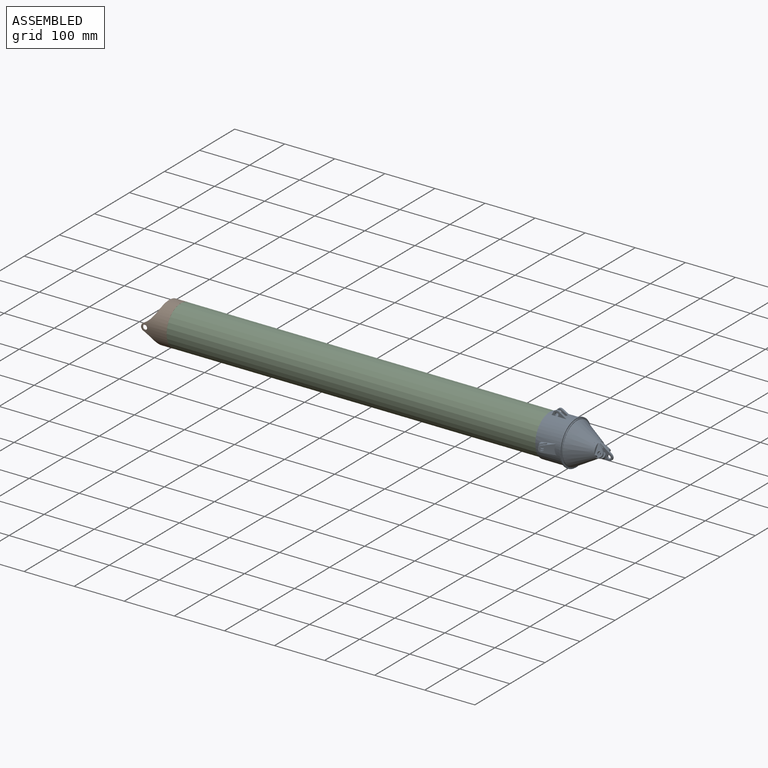
[diagram: assembled view]
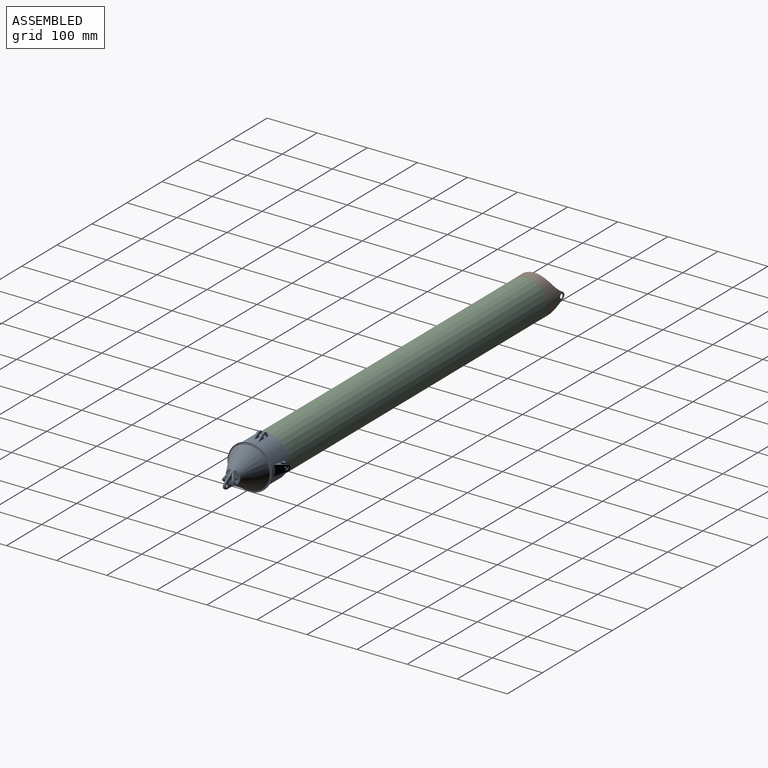
[diagram: assembled view, second angle]
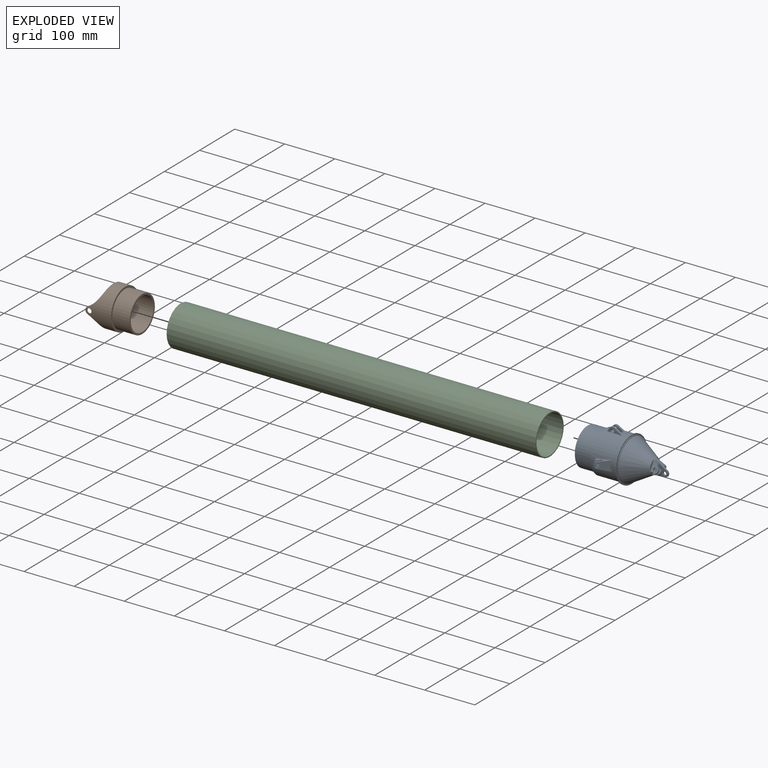
[diagram: exploded view]
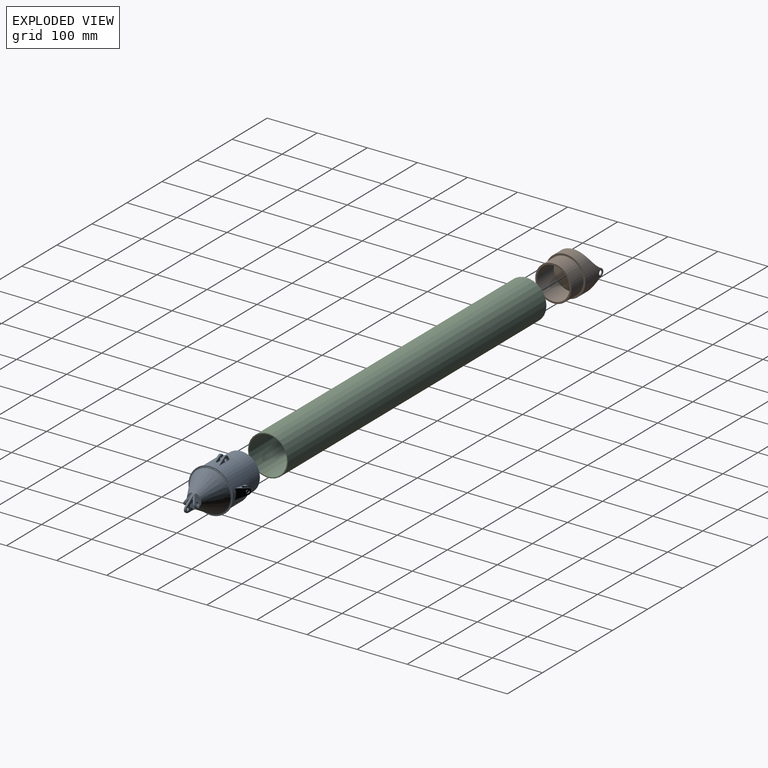
[diagram: exploded view, second angle]
ASSEMBLY  parts=3 mates=2
PART A: 187 faces, bbox 162.1x110.4x98 mm
  f0: plane 83.2x82.29mm, normal (-1,0,0), area 990.7mm2, adj f179,f180,f182,f183
  f1: cylinder r=41.15mm len=82.29mm, axis (-1,0,0), area 275.8mm2, adj f2,f81,f82,f83
  f2: plane 82.29x52.86mm, normal (1,0,0), area 121mm2, adj f1,f3
  f3: cone r=17.5mm half-angle=30deg, axis (-1,0,0), area 8572.9mm2, adj f2,f4,f82
  f4: plane 34.99x34.99mm, normal (1,0,0), area 5.9mm2, adj f3,f74
  f5: plane 6.98x6mm, normal (0,0.86,0.51), area 38.2mm2, adj f7
  f6: plane 6.98x6mm, normal (0,-0.86,0.51), area 38.2mm2, adj f8
  f7: cylinder r=3.49mm len=7.19mm, axis (0,0.86,0.51), area 51mm2, adj f5,f11
  f8: cylinder r=3.49mm len=7.19mm, axis (0,-0.86,0.51), area 51mm2, adj f6,f12
  f9: sphere r=1.16mm, area 0.7mm2, adj f18,f19,f33
  f10: sphere r=1.16mm, area 0.7mm2, adj f23,f25,f34
  f11: plane 12.79x10.55mm, normal (0,0.86,0.51), area 95.2mm2, adj f7,f15,f21,f23,f34,f36
  f12: plane 12.79x10.55mm, normal (0,-0.86,0.51), area 95.2mm2, adj f8,f13,f16,f18,f33,f37
  f13: bspline ~6.45x4.64mm, area 27.7mm2, adj f12,f14,f16,f37,f59
  f14: bspline ~3.84x3.17mm, area 11.7mm2, adj f13,f15,f20,f59
  f15: bspline ~6.45x4.69mm, area 27.7mm2, adj f11,f14,f21,f36,f59
  f16: cylinder r=6.98mm len=13.22mm, axis (0,-0.86,0.51), area 63.9mm2, adj f12,f13,f17,f18,f38
  f17: plane 0.44x0.31mm, normal (0.78,0.32,0.54), area 0mm2, adj f16,f18,f38
  f18: cylinder r=1.16mm len=11.43mm, axis (-1,0,0), area 7mm2, adj f9,f12,f16,f17,f38
  f19: cylinder r=1.16mm len=5.47mm, axis (0,0,1), area 10mm2, adj f9,f26,f32,f38
  f20: plane 12.79x3.49mm, normal (0,0,-1), area 44.6mm2, adj f14,f38,f39,f40
  f21: cylinder r=6.98mm len=13.22mm, axis (0,0.86,0.51), area 63.9mm2, adj f11,f15,f22,f23,f40
  f22: plane 0.44x0.31mm, normal (0.78,-0.32,0.54), area 0mm2, adj f21,f23,f40
  f23: cylinder r=1.16mm len=11.43mm, axis (1,0,0), area 7mm2, adj f10,f11,f21,f22,f40
  f24: cylinder r=3.49mm len=6.98mm, axis (0,-1,0), area 76.5mm2, adj f38,f40
  f25: cylinder r=1.16mm len=5.47mm, axis (0,0,-1), area 10mm2, adj f10,f35,f40,f41
  f26: sphere r=1.16mm, area 3.5mm2, adj f19,f31,f43
  f27: plane 3.28x3mm, normal (0,-0.51,-0.86), area 6.3mm2, adj f45,f46,f47,f52
  f28: cylinder r=3.49mm len=7.78mm, axis (0,0.86,-0.51), area 76.5mm2, adj f46,f47
  f29: plane 15.29x9.21mm, normal (1,0,0), area 38.3mm2, adj f48,f50
  f30: bspline ~2.4x1.54mm, area 1.7mm2, adj f47,f48,f51,f52
  f31: cylinder r=1.16mm len=14.21mm, axis (0,0.51,0.86), area 28.9mm2, adj f26,f32,f46,f52,f53
  f32: plane 15.9x8.54mm, normal (1,0,0), area 39.5mm2, adj f19,f31,f33,f53,f54
  f33: cylinder r=1.16mm len=11.01mm, axis (0,-0.51,-0.86), area 21.6mm2, adj f9,f12,f32,f37,f55
  f34: cylinder r=1.16mm len=11.01mm, axis (0,0.51,-0.86), area 21.6mm2, adj f10,f11,f35,f36,f56
  f35: plane 15.9x8.54mm, normal (1,0,0), area 39.5mm2, adj f25,f34,f42,f57,f58
  f36: bspline ~2.86x1.98mm, area 3.6mm2, adj f11,f15,f34,f56,f59
  f37: bspline ~2.86x1.98mm, area 3.6mm2, adj f12,f13,f33,f55,f59
  f38: plane 27.14x25.58mm, normal (0,-1,0), area 240.1mm2, adj f16,f17,f18,f19,f20,f24,f39,f43
  f39: cylinder r=6.98mm len=12.72mm, axis (0,-1,0), area 61.8mm2, adj f20,f38,f40,f67
  f40: plane 27.91x26.35mm, normal (0,1,0), area 240.1mm2, adj f20,f21,f22,f23,f24,f25,f39,f67
  f41: sphere r=1.16mm, area 3.8mm2, adj f25,f42,f69
  f42: cylinder r=1.16mm len=14.21mm, axis (0,-0.51,0.86), area 28.9mm2, adj f35,f41,f58,f64,f70
  f43: cylinder r=1.16mm len=9.16mm, axis (-1,0,0), area 22.9mm2, adj f26,f38,f44,f46,f72
  f44: bspline ~9.03x7.55mm, area 12.6mm2, adj f38,f43,f72
  f45: cylinder r=6.98mm len=11.53mm, axis (0,0.86,-0.51), area 54.7mm2, adj f27,f46,f47,f72
  f46: plane 13.61x12.79mm, normal (0,0.86,-0.51), area 136.3mm2, adj f27,f28,f31,f43,f45,f52,f72
  f47: plane 19.95x12.81mm, normal (0,-0.86,0.51), area 160.7mm2, adj f27,f28,f30,f45,f48,f52,f72,f73
  f48: cylinder r=1.16mm len=17.87mm, axis (0,-0.51,-0.86), area 35.5mm2, adj f29,f30,f47,f49,f51,f73
  f49: bspline ~2.05x1.26mm, area 1.8mm2, adj f48,f50,f73,f74
  f50: torus R=14.09mm, axis (1,0,0), area 24.3mm2, adj f29,f49,f51,f74
  f51: bspline ~2.06x1.07mm, area 1.8mm2, adj f30,f48,f50,f74
  f52: torus R=18.78mm, axis (1,0,0), area 22.4mm2, adj f27,f30,f31,f46,f47,f53,f74
  f53: plane 2.6x1.81mm, normal (0,-0.51,-0.86), area 0.8mm2, adj f31,f32,f52,f54,f74
  f54: torus R=14.09mm, axis (1,0,0), area 5.6mm2, adj f32,f53,f55,f74
  f55: bspline ~1.49x1.48mm, area 1.6mm2, adj f33,f37,f54,f74
  f56: bspline ~1.49x1.48mm, area 1.6mm2, adj f34,f36,f57,f74
  f57: torus R=14.09mm, axis (1,0,0), area 5.6mm2, adj f35,f56,f58,f74
  f58: plane 2.61x1.81mm, normal (0,0.51,-0.86), area 0.8mm2, adj f35,f42,f57,f64,f74
  f59: torus R=18.78mm, axis (1,0,0), area 49.5mm2, adj f13,f14,f15,f36,f37,f74
  f60: bspline ~2.06x1.07mm, area 1.8mm2, adj f62,f65,f74,f75
  f61: plane 15.29x9.21mm, normal (1,0,0), area 38.3mm2, adj f62,f75
  f62: torus R=14.09mm, axis (1,0,0), area 24.3mm2, adj f60,f61,f74,f76
  f63: plane 3.28x3mm, normal (0,0.51,-0.86), area 6.3mm2, adj f64,f70,f71,f77
  f64: torus R=18.78mm, axis (1,0,0), area 22.4mm2, adj f42,f58,f63,f65,f70,f74,f77
  f65: bspline ~2.4x1.54mm, area 1.7mm2, adj f60,f64,f75,f77
  f66: cylinder r=3.49mm len=7.78mm, axis (0,-0.86,-0.51), area 76.5mm2, adj f70,f77
  f67: plane 22.28x15.35mm, normal (0.57,0,0.82), area 91.5mm2, adj f38,f39,f40,f72,f78
  f68: bspline ~9.03x7.55mm, area 9mm2, adj f40,f69,f78
  f69: cylinder r=1.16mm len=9.16mm, axis (1,0,0), area 22.9mm2, adj f40,f41,f68,f70,f78
  f70: plane 13.61x12.79mm, normal (0,-0.86,-0.51), area 136.3mm2, adj f42,f63,f64,f66,f69,f71,f78
  f71: cylinder r=6.98mm len=11.53mm, axis (0,-0.86,-0.51), area 54.7mm2, adj f63,f70,f77,f78
  f72: plane 12.41x11.1mm, normal (0.78,0.32,0.54), area 47.1mm2, adj f43,f44,f45,f46,f47,f67,f78,f80
  f73: bspline ~2.4x1.28mm, area 1.7mm2, adj f47,f48,f49,f80
  f74: cone r=14.76mm half-angle=30deg, axis (-1,0,0), area 504.9mm2, adj f4,f49,f50,f51,f52,f53,f54,f55
  f75: cylinder r=1.16mm len=17.87mm, axis (0,-0.51,0.86), area 35.5mm2, adj f60,f61,f65,f76,f77,f79
  f76: bspline ~2.05x1.26mm, area 1.8mm2, adj f62,f74,f75,f79
  f77: plane 19.95x12.81mm, normal (0,0.86,0.51), area 160.7mm2, adj f63,f64,f65,f66,f71,f75,f78,f79
  f78: plane 13.04x11.72mm, normal (0.78,-0.32,0.54), area 47mm2, adj f67,f68,f69,f70,f71,f72,f77,f80
  f79: bspline ~2.4x1.28mm, area 1.7mm2, adj f75,f76,f77,f80
  f80: torus R=18.78mm, axis (1,0,0), area 12.4mm2, adj f47,f72,f73,f74,f77,f78,f79
  f81: torus R=41.34mm, axis (-1,0,0), area 92.3mm2, adj f1,f82,f83
  f82: cylinder r=40.87mm len=78.89mm, axis (1,0,0), area 148.9mm2, adj f1,f3,f81
  f83: plane 88.37x88.37mm, normal (1,0,0), area 705.7mm2, adj f1,f81,f84
  f84: cylinder r=44.19mm len=88.37mm, axis (1,0,0), area 516.5mm2, adj f83,f85
  f85: plane 88.37x88.37mm, normal (-1,0,0), area 678.7mm2, adj f84,f86,f180
  f86: torus R=41.51mm, axis (1,0,0), area 103.5mm2, adj f85,f179,f180
  f87: cylinder r=41.15mm len=4.18mm, axis (-1,0,0), area 0mm2, adj f88,f91
  f88: plane 7.16x5.7mm, normal (0.5,0.87,0), area 35.9mm2, adj f87,f91
  f89: cylinder r=41.15mm len=4.18mm, axis (-1,0,0), area 0mm2, adj f90,f92
  f90: plane 7.16x5.7mm, normal (0.5,-0.87,0), area 35.9mm2, adj f89,f92
  f91: cylinder r=3.49mm len=7.55mm, axis (0.5,0.87,0), area 66.3mm2, adj f87,f88,f93
  f92: cylinder r=3.49mm len=7.55mm, axis (0.5,-0.87,0), area 66.3mm2, adj f89,f90,f95
  f93: plane 11.63x10.07mm, normal (0.5,0.87,0), area 68mm2, adj f91,f99,f100
  f94: torus R=6.05mm, axis (0.5,0.87,0), area 13.5mm2, adj f98,f101
  f95: plane 11.63x10.07mm, normal (0.5,-0.87,0), area 68mm2, adj f92,f104,f105
  f96: torus R=6.05mm, axis (0.5,-0.87,0), area 13.5mm2, adj f97,f108
  f97: plane 11.63x10.07mm, normal (-0.5,0.87,0), area 68mm2, adj f96,f110
  f98: plane 11.63x10.07mm, normal (-0.5,-0.87,0), area 68mm2, adj f94,f116
  f99: torus R=6.05mm, axis (0.5,0.87,0), area 6.8mm2, adj f93,f100,f123
  f100: torus R=6.05mm, axis (0.5,0.87,0), area 6.8mm2, adj f93,f99,f123
  f101: plane 15.47x11.68mm, normal (-0.5,-0.87,0), area 51.8mm2, adj f94,f102,f114,f115,f125
  f102: cylinder r=1.16mm len=15.85mm, axis (0,0,1), area 28.6mm2, adj f101,f103,f114,f125
  f103: plane 15.85x2.62mm, normal (-0.87,0.5,0), area 47.9mm2, adj f102,f114,f125,f126
  f104: torus R=6.05mm, axis (0.5,-0.87,0), area 6.8mm2, adj f95,f105,f129
  f105: torus R=6.05mm, axis (0.5,-0.87,0), area 6.8mm2, adj f95,f104,f129
  f106: plane 15.85x2.62mm, normal (-0.87,-0.5,0), area 47.9mm2, adj f107,f111,f130,f131
  f107: cylinder r=1.16mm len=15.85mm, axis (0,0,-1), area 28.6mm2, adj f106,f108,f111,f131
  f108: plane 15.47x11.68mm, normal (-0.5,0.87,0), area 51.8mm2, adj f96,f107,f109,f111,f131
  f109: cylinder r=6.51mm len=12.85mm, axis (0.5,-0.87,0), area 42.7mm2, adj f108,f111,f131,f134
  f110: cylinder r=3.49mm len=7.32mm, axis (0.5,-0.87,0), area 56.1mm2, adj f97,f134
  f111: plane 20.56x11.23mm, normal (-0.14,-0.08,0.99), area 67.9mm2, adj f106,f107,f108,f109,f130,f134,f135
  f112: plane 8.86x3.9mm, normal (-0.14,-0.08,0.99), area 16.6mm2, adj f128,f129,f135
  f113: plane 8.86x3.9mm, normal (-0.14,0.08,0.99), area 16.6mm2, adj f123,f127,f136
  f114: plane 20.56x11.23mm, normal (-0.14,0.08,0.99), area 67.9mm2, adj f101,f102,f103,f115,f126,f136,f137
  f115: cylinder r=6.51mm len=12.85mm, axis (0.5,0.87,0), area 42.7mm2, adj f101,f114,f125,f137
  f116: cylinder r=3.49mm len=7.32mm, axis (0.5,0.87,0), area 56.1mm2, adj f98,f137
  f117: plane 6.71x4.35mm, normal (-0.87,0,0.48), area 30.4mm2, adj f121,f122,f141,f142,f154
  f118: plane 6.71x4.35mm, normal (-0.87,0,0.48), area 30.4mm2, adj f119,f120,f145,f146,f160
  f119: plane 28.59x10.16mm, normal (0,-1,0.03), area 113.6mm2, adj f118,f120,f146,f166,f168,f169
  f120: cylinder r=6.98mm len=9.59mm, axis (0,-1,0), area 44.1mm2, adj f118,f119,f160,f169
  f121: cylinder r=6.98mm len=9.59mm, axis (0,-1,0), area 44.1mm2, adj f117,f122,f154,f169
  f122: plane 28.59x10.16mm, normal (0,1,0.03), area 113.6mm2, adj f117,f121,f141,f169,f170,f172
  f123: plane 15.48x11.68mm, normal (0.5,0.87,0), area 52.1mm2, adj f99,f100,f113,f124,f126,f127,f136,f173
  f124: plane 8.86x3.9mm, normal (-0.14,0.08,-0.99), area 16.6mm2, adj f123,f127,f173
  f125: plane 20.56x11.23mm, normal (-0.14,0.08,-0.99), area 67.9mm2, adj f101,f102,f103,f115,f126,f137,f173
  f126: cylinder r=1.16mm len=15.85mm, axis (0,0,-1), area 28.7mm2, adj f103,f114,f123,f125,f136,f173
  f127: cylinder r=6.51mm len=12.85mm, axis (0.5,0.87,0), area 105.2mm2, adj f113,f123,f124,f174
  f128: cylinder r=6.51mm len=12.85mm, axis (0.5,-0.87,0), area 105.2mm2, adj f112,f129,f132,f175
  f129: plane 15.48x11.68mm, normal (0.5,-0.87,0), area 52.1mm2, adj f104,f105,f112,f128,f130,f132,f135,f176
  f130: cylinder r=1.16mm len=15.85mm, axis (0,0,1), area 28.7mm2, adj f106,f111,f129,f131,f135,f176
  f131: plane 20.56x11.23mm, normal (-0.14,-0.08,-0.99), area 67.9mm2, adj f106,f107,f108,f109,f130,f134,f176
  f132: plane 8.86x3.9mm, normal (-0.14,-0.08,-0.99), area 16.6mm2, adj f128,f129,f176
  f133: bspline ~6.3x1.13mm, area 0.9mm2, adj f134,f177,f180
  f134: plane 25.85x21.37mm, normal (0.5,-0.87,0), area 385mm2, adj f109,f110,f111,f131,f133,f135,f176,f177
  f135: bspline ~27x4.32mm, area 27.7mm2, adj f111,f112,f129,f130,f134,f175,f180
  f136: bspline ~29.05x4.7mm, area 27.7mm2, adj f113,f114,f123,f126,f137,f174,f180
  f137: plane 25.85x21.37mm, normal (0.5,0.87,0), area 385mm2, adj f114,f115,f116,f125,f136,f138,f173,f178
  f138: bspline ~6.3x1.13mm, area 0.9mm2, adj f137,f178,f180
  f139: torus R=4.14mm, axis (0,1,0), area 0.8mm2, adj f149,f150,f172,f180
  f140: bspline ~1.33x1.01mm, area 0.3mm2, adj f141,f172,f180
  f141: cylinder r=2.33mm len=6.7mm, axis (1,0,0), area 5mm2, adj f117,f122,f140,f142,f180
  f142: bspline ~5.28x0.74mm, area 0.6mm2, adj f117,f141,f154,f180
  f143: torus R=6.05mm, axis (0,1,0), area 4.5mm2, adj f152,f153,f154,f180
  f144: torus R=6.05mm, axis (0,1,0), area 4.5mm2, adj f160,f161,f162,f180
  f145: bspline ~5.28x0.74mm, area 0.6mm2, adj f118,f146,f160,f180
  f146: cylinder r=2.33mm len=6.7mm, axis (1,0,0), area 5mm2, adj f118,f119,f145,f147,f180
  f147: bspline ~1.33x1.01mm, area 0.3mm2, adj f146,f166,f180
  f148: torus R=4.14mm, axis (0,-1,0), area 0.8mm2, adj f164,f165,f166,f180
  f149: torus R=4.14mm, axis (0,1,0), area 0.8mm2, adj f139,f150,f172,f180
  f150: plane 8.28x7.49mm, normal (0,1,0), area 13.2mm2, adj f139,f149,f151,f180
  f151: cylinder r=3.49mm len=6.98mm, axis (0,1,0), area 74.7mm2, adj f150,f152,f180
  f152: plane 11.66x8.76mm, normal (0,-1,0), area 48.8mm2, adj f143,f151,f153,f180
  f153: torus R=6.05mm, axis (0,1,0), area 4.5mm2, adj f143,f152,f154,f180
  f154: plane 24.28x9.91mm, normal (0,-1,0), area 68.2mm2, adj f117,f121,f142,f143,f153,f155,f156,f169
  f155: cylinder r=1.16mm len=0.16mm, axis (0.92,0,0.38), area 0mm2, adj f154,f156,f180
  f156: torus R=5.81mm, axis (0,1,0), area 5.4mm2, adj f154,f155,f157,f169,f180
  f157: cylinder r=6.98mm len=3.02mm, axis (0,1,0), area 7.5mm2, adj f156,f158,f169,f180
  f158: torus R=5.81mm, axis (0,1,0), area 5.4mm2, adj f157,f159,f160,f169,f180
  f159: cylinder r=1.16mm len=0.16mm, axis (-0.92,0,-0.38), area 0mm2, adj f158,f160,f180
  f160: plane 24.28x9.92mm, normal (0,1,0), area 68.2mm2, adj f118,f120,f144,f145,f158,f159,f161,f169
  f161: torus R=6.05mm, axis (0,1,0), area 4.5mm2, adj f144,f160,f162,f180
  f162: plane 11.65x8.76mm, normal (0,1,0), area 48.8mm2, adj f144,f161,f163,f180
  f163: cylinder r=3.49mm len=6.98mm, axis (0,1,0), area 74.7mm2, adj f162,f164,f180
  f164: plane 8.28x7.49mm, normal (0,-1,0), area 13.2mm2, adj f148,f163,f165,f180
  f165: torus R=4.14mm, axis (0,-1,0), area 0.8mm2, adj f148,f164,f166,f180
  f166: cylinder r=4.19mm len=8.37mm, axis (0,1,0), area 9.9mm2, adj f119,f147,f148,f165,f167,f180
  f167: bspline ~1.33x1.01mm, area 0.3mm2, adj f166,f168,f180
  f168: cylinder r=2.33mm len=16.75mm, axis (1,0,0), area 12.5mm2, adj f119,f167,f169,f180
  f169: plane 16.48x14.16mm, normal (0.5,0,0.87), area 171.2mm2, adj f119,f120,f121,f122,f154,f156,f157,f158
  f170: cylinder r=2.33mm len=16.75mm, axis (1,0,0), area 12.5mm2, adj f122,f169,f171,f180
  f171: bspline ~1.33x1.01mm, area 0.3mm2, adj f170,f172,f180
  f172: cylinder r=4.19mm len=8.37mm, axis (0,-1,0), area 9.9mm2, adj f122,f139,f140,f149,f171,f180
  f173: bspline ~29.16x5.31mm, area 55.6mm2, adj f123,f124,f125,f126,f137,f174,f178,f179
  f174: bspline ~15.45x7.67mm, area 33mm2, adj f127,f136,f173,f179,f180
  f175: bspline ~15.45x7.67mm, area 33mm2, adj f128,f135,f176,f179,f180
  f176: bspline ~28.99x5.29mm, area 55.6mm2, adj f129,f130,f131,f132,f134,f175,f177,f179
  f177: bspline ~12.25x3.93mm, area 9.5mm2, adj f133,f134,f176,f179,f180
  f178: bspline ~12.18x3.89mm, area 9.5mm2, adj f137,f138,f173,f179,f180
  f179: cylinder r=41.05mm len=81.78mm, axis (-1,0,0), area 5753.3mm2, adj f0,f86,f173,f174,f175,f176,f177,f178
  f180: cylinder r=41.15mm len=82.29mm, axis (-1,0,0), area 6008.2mm2, adj f0,f85,f86,f133,f134,f135,f136,f137
  f181: plane 75.2x74.29mm, normal (-1,0,0), area 739.2mm2, adj f182,f183,f186
  f182: cylinder r=37.15mm len=74.29mm, axis (1,0,0), area 4380mm2, adj f0,f181,f183
  f183: cylinder r=37.05mm len=73.82mm, axis (1,0,0), area 3848.8mm2, adj f0,f181,f182
  f184: plane 18.07x18.07mm, normal (-1,0,0), area 256.4mm2, adj f185
  f185: cone r=9.03mm half-angle=32.9deg, axis (-1,0,0), area 6266.5mm2, adj f184,f186
  f186: cylinder r=34.13mm len=87.4mm, axis (1,0,0), area 18741mm2, adj f181,f185
PART B: 15 faces, bbox 85.5x80x80 mm
  f0: cylinder r=40mm len=80mm, axis (-1,0,0), area 7608.7mm2, adj f1,f2,f3,f4,f5,f6,f10
  f1: cylinder r=4.57mm len=9.14mm, axis (0,-1,0), area 52.7mm2, adj f0,f7
  f2: cylinder r=8mm len=14.17mm, axis (0,-1,0), area 32mm2, adj f0,f4,f6,f7
  f3: cylinder r=4.57mm len=9.14mm, axis (0,-1,0), area 52.7mm2, adj f0,f7
  f4: cylinder r=45.71mm len=78.74mm, axis (0,-1,0), area 237.5mm2, adj f0,f2,f5,f7
  f5: cylinder r=8mm len=14.17mm, axis (0,-1,0), area 32mm2, adj f0,f4,f6,f7
  f6: cylinder r=45.71mm len=78.74mm, axis (0,-1,0), area 237.3mm2, adj f0,f2,f5,f7
  f7: cylinder r=38.17mm len=76.34mm, axis (-1,0,0), area 2224.9mm2, adj f1,f2,f3,f4,f5,f6,f9
  f8: sphere r=79.09mm, area 4513.7mm2, adj f9
  f9: plane 76.34x76.34mm, normal (-1,0,0), area 323mm2, adj f7,f8
  f10: plane 80x80mm, normal (1,0,0), area 939.5mm2, adj f0,f11
  f11: cylinder r=36.07mm len=72.14mm, axis (1,0,0), area 7795.9mm2, adj f10,f12
  f12: plane 72.14x72.14mm, normal (1,0,0), area 742.4mm2, adj f11,f14
  f13: revolved ~65.08x65.08mm, area 3479.6mm2, adj f14
  f14: cylinder r=32.63mm len=65.26mm, axis (1,0,0), area 9829.4mm2, adj f12,f13
PART C: 4 faces, bbox 737x80x80 mm
  f0: cylinder r=38mm len=737mm, axis (-1,0,0), area 175967mm2, adj f2,f3
  f1: cylinder r=40mm len=737mm, axis (-1,0,0), area 185228.4mm2, adj f2,f3
  f2: plane 80x80mm, normal (1,0,0), area 490.1mm2, adj f0,f1
  f3: plane 80x80mm, normal (-1,0,0), area 490.1mm2, adj f0,f1
PLACE A t=(-32859.55,123.2,13877.88)mm
PLACE B t=(-4017.99,123.88,13899.42)mm
PLACE C t=(-4017.99,123.88,13899.42)mm
MATE fastened B.f0 <-> C.f0  axis (1,0,0) through (36.15,123.2,-100.71)mm
MATE fastened A.f1 <-> C.f0  axis (-1,0,0) through (773.15,123.2,-100.71)mm
